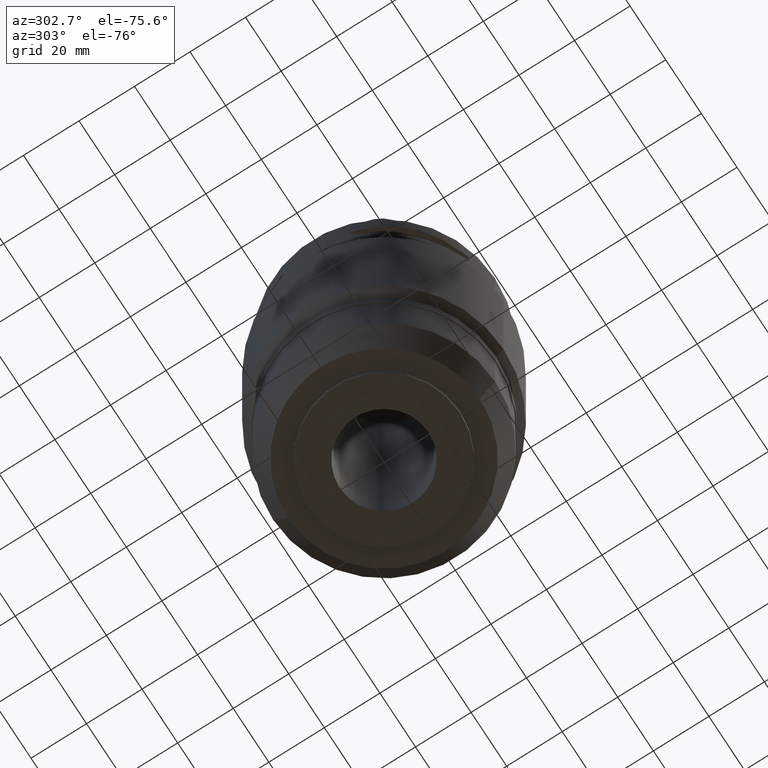
[diagram: clean part render]
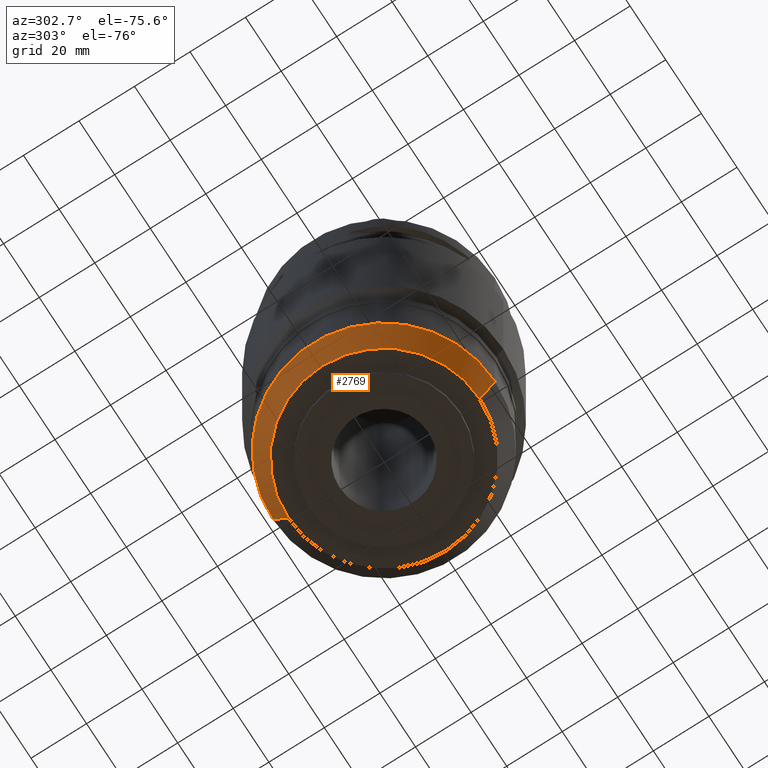
[diagram: same view with one face highlighted and labeled with its STEP entity id]
A machine part, auxiliary view. The second image highlights one B-rep face of the part: STEP entity #2769.
In plain terms, the highlighted conical surface has half-angle 30 deg.
Its self-contained STEP definition (entity closure, byte-faithful):
#708=DIRECTION('',(0.E0,-5.E-1,-8.660254037845E-1));
#709=VECTOR('',#708,1.096965511460E1);
#710=CARTESIAN_POINT('',(0.E0,4.E1,-1.259E2));
#711=LINE('',#710,#709);
#723=CARTESIAN_POINT('',(0.E0,0.E0,-1.259E2));
#724=DIRECTION('',(0.E0,0.E0,1.E0));
#725=DIRECTION('',(0.E0,1.E0,0.E0));
#726=AXIS2_PLACEMENT_3D('',#723,#724,#725);
#731=DIRECTION('',(0.E0,5.E-1,-8.660254037845E-1));
#732=VECTOR('',#731,1.096965511460E1);
#733=CARTESIAN_POINT('',(0.E0,-4.E1,-1.259E2));
#734=LINE('',#733,#732);
#746=CARTESIAN_POINT('',(0.E0,0.E0,-1.354E2));
#747=DIRECTION('',(0.E0,0.E0,1.E0));
#748=DIRECTION('',(0.E0,1.E0,0.E0));
#749=AXIS2_PLACEMENT_3D('',#746,#747,#748);
#1660=CARTESIAN_POINT('',(0.E0,4.E1,-1.259E2));
#1661=VERTEX_POINT('',#1660);
#1662=CARTESIAN_POINT('',(0.E0,-4.E1,-1.259E2));
#1663=VERTEX_POINT('',#1662);
#1664=CARTESIAN_POINT('',(0.E0,3.451517244270E1,-1.354E2));
#1665=VERTEX_POINT('',#1664);
#1666=CARTESIAN_POINT('',(0.E0,-3.451517244270E1,-1.354E2));
#1667=VERTEX_POINT('',#1666);
#2757=CARTESIAN_POINT('',(0.E0,0.E0,-1.3065E2));
#2758=DIRECTION('',(0.E0,0.E0,1.E0));
#2759=DIRECTION('',(0.E0,1.E0,0.E0));
#2760=AXIS2_PLACEMENT_3D('',#2757,#2758,#2759);
#2761=CONICAL_SURFACE('',#2760,3.725758622135E1,3.E1);
#2762=ORIENTED_EDGE('',*,*,#2747,.F.);
#2763=ORIENTED_EDGE('',*,*,#2724,.T.);
#2764=ORIENTED_EDGE('',*,*,#2751,.T.);
#2766=ORIENTED_EDGE('',*,*,#2765,.F.);
#2767=EDGE_LOOP('',(#2762,#2763,#2764,#2766));
#2768=FACE_OUTER_BOUND('',#2767,.F.);
#727=CIRCLE('',#726,4.E1);
#750=CIRCLE('',#749,3.451517244270E1);
#2724=EDGE_CURVE('',#1661,#1663,#727,.T.);
#2747=EDGE_CURVE('',#1661,#1665,#711,.T.);
#2751=EDGE_CURVE('',#1663,#1667,#734,.T.);
#2765=EDGE_CURVE('',#1665,#1667,#750,.T.);
#2769=ADVANCED_FACE('',(#2768),#2761,.T.);